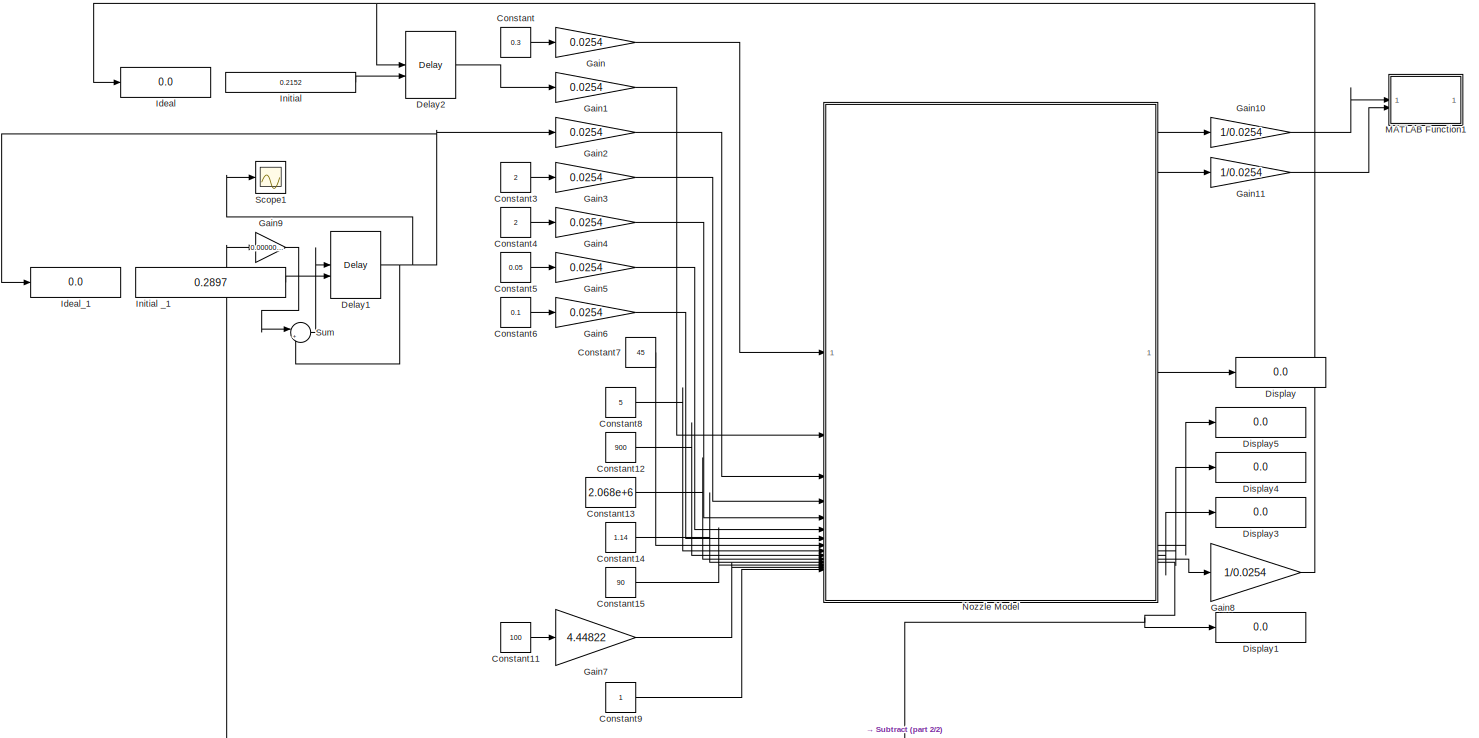
[diagram: root canvas - part 1/2, most of the canvas]
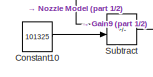
[diagram: root canvas - part 2/2, bottom center region]
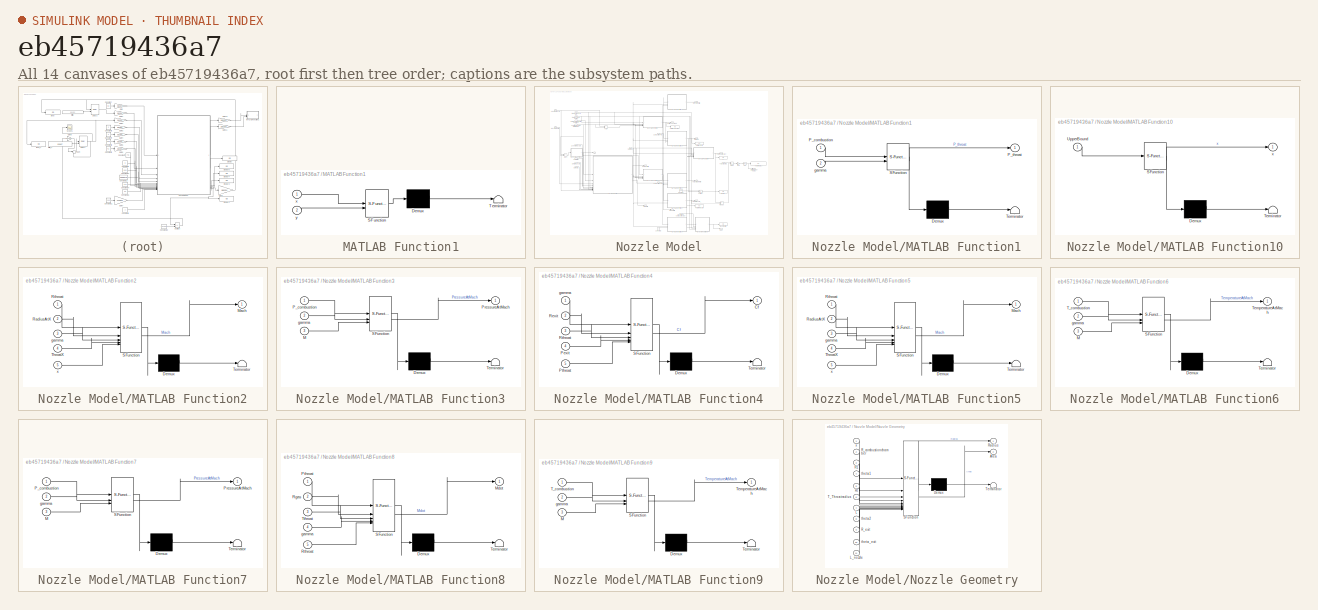
[diagram: thumbnail index - all 14 canvases of the model, root first then tree order]
MODEL slx_eb45719436a7
KIND model
CONFIG AbsTol = auto
CONFIG EnableMultiTasking = off
CONFIG FixedStep = 0.001
CONFIG MaxStep = auto
CONFIG MinStep = auto
CONFIG RelTol = 1e-3
CONFIG SampleTimeConstraint = Unconstrained
CONFIG SolverName = VariableStepAuto
CONFIG StartTime = 0.0
CONFIG StopTime = 10
BLOCK [Constant] Constant
  Value = 0.3
BLOCK [Constant] Constant10
  Value = 101325
BLOCK [Constant] Constant11
  Value = 100
BLOCK [Constant] Constant12
  Value = 900
BLOCK [Constant] Constant13
  Value = 2.068e+6
BLOCK [Constant] Constant14
  Value = 1.14
BLOCK [Constant] Constant15
  Value = 90
BLOCK [Constant] Constant3
  Value = 2
BLOCK [Constant] Constant4
  Value = 2
BLOCK [Constant] Constant5
  Value = 0.05
BLOCK [Constant] Constant6
  Value = 0.1
BLOCK [Constant] Constant7
  Value = 45
BLOCK [Constant] Constant8
  Value = 5
BLOCK [Constant] Constant9
BLOCK [Delay] Delay1
  DelayLength = 1
  InitialConditionSource = Input port
  InputPortMap = u0,p4
BLOCK [Delay] Delay2
  DelayLength = 1
  InitialConditionSource = Input port
  InputPortMap = u0,p4
BLOCK [Display] Display
  Decimation = 1
BLOCK [Display] Display1
  Decimation = 1
BLOCK [Display] Display3
  Decimation = 1
BLOCK [Display] Display4
  Decimation = 1
BLOCK [Display] Display5
  Decimation = 1
BLOCK [Gain] Gain
  Gain = 0.0254
BLOCK [Gain] Gain1
  Gain = 0.0254
BLOCK [Gain] Gain10
  Gain = 1/0.0254
BLOCK [Gain] Gain11
  Gain = 1/0.0254
BLOCK [Gain] Gain2
  Gain = 0.0254
BLOCK [Gain] Gain3
  Gain = 0.0254
BLOCK [Gain] Gain4
  Gain = 0.0254
BLOCK [Gain] Gain5
  Gain = 0.0254
BLOCK [Gain] Gain6
  Gain = 0.0254
BLOCK [Gain] Gain7
  Gain = 4.44822
BLOCK [Gain] Gain8
  Gain = 1/0.0254
BLOCK [Gain] Gain9
  Gain = 0.0000001
BLOCK [Display] Ideal
  Decimation = 1
BLOCK [Display] Ideal_1
  Decimation = 1
BLOCK [Constant] Initial
  Value = 0.2152
BLOCK [Constant] Initial _1
  Value = 0.2897
BLOCK [SubSystem] MATLAB Function1
  ErrorFcn = Stateflow.Translate.translate
  PermitHierarchicalResolution = ExplicitOnly
  SFBlockType = MATLAB Function
  TreatAsAtomicUnit = on
BLOCK [Demux] MATLAB Function1/ Demux 
  Outputs = 1
BLOCK [S-Function] MATLAB Function1/ SFunction 
  EnableBusSupport = on
  FunctionName = sf_sfun
  PortCounts = [2 1]
  SFcnIsStateOwnerBlock = off
  SFunctionDeploymentMode = off
  Tag = Stateflow S-Function 13
BLOCK [Terminator] MATLAB Function1/ Terminator 
BLOCK [Inport] MATLAB Function1/x
BLOCK [Inport] MATLAB Function1/y
  Port = 2
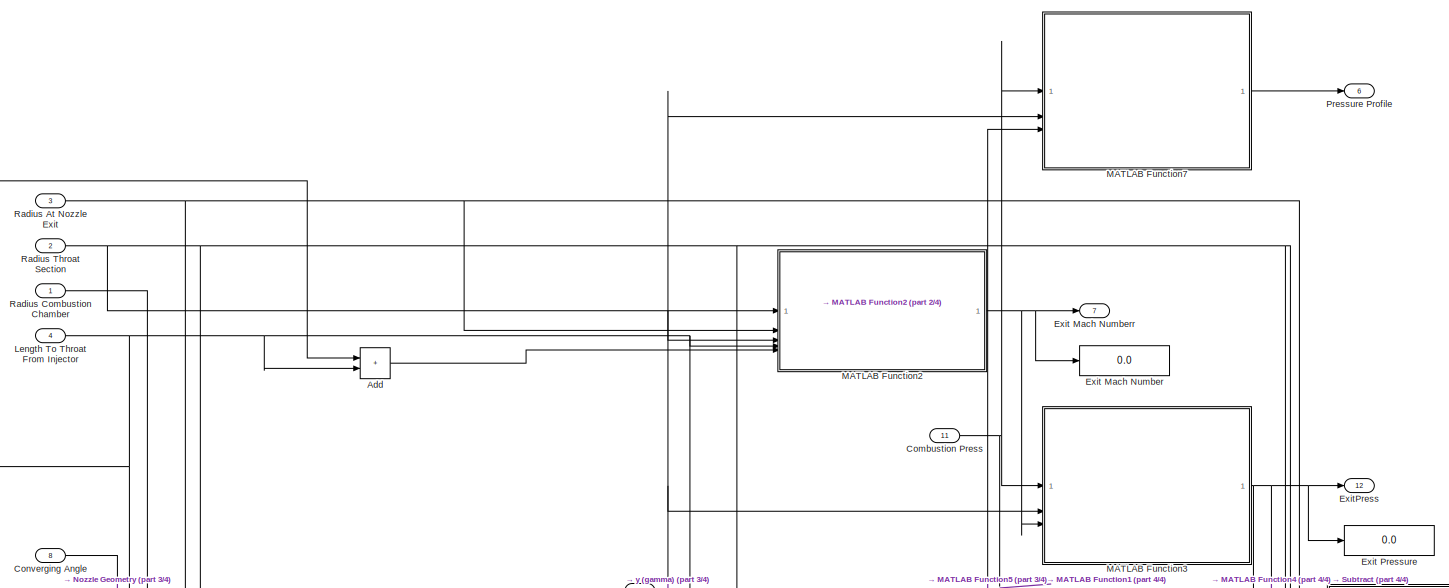
[diagram: Nozzle Model - part 1/4, top center region]
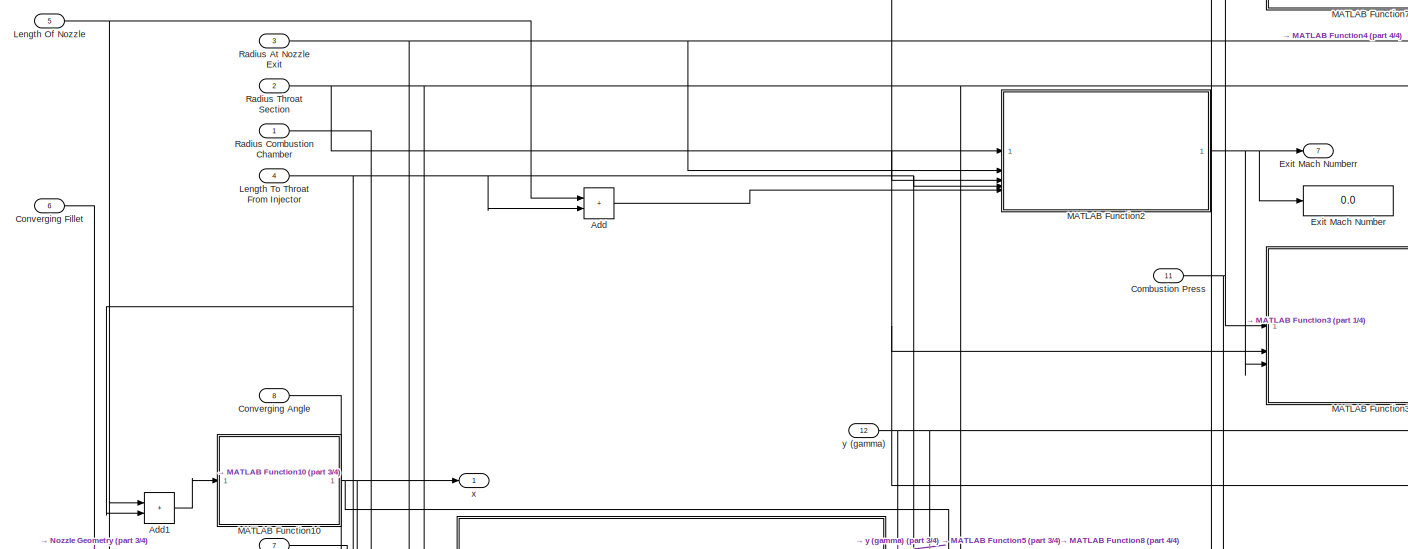
[diagram: Nozzle Model - part 2/4, top left region]
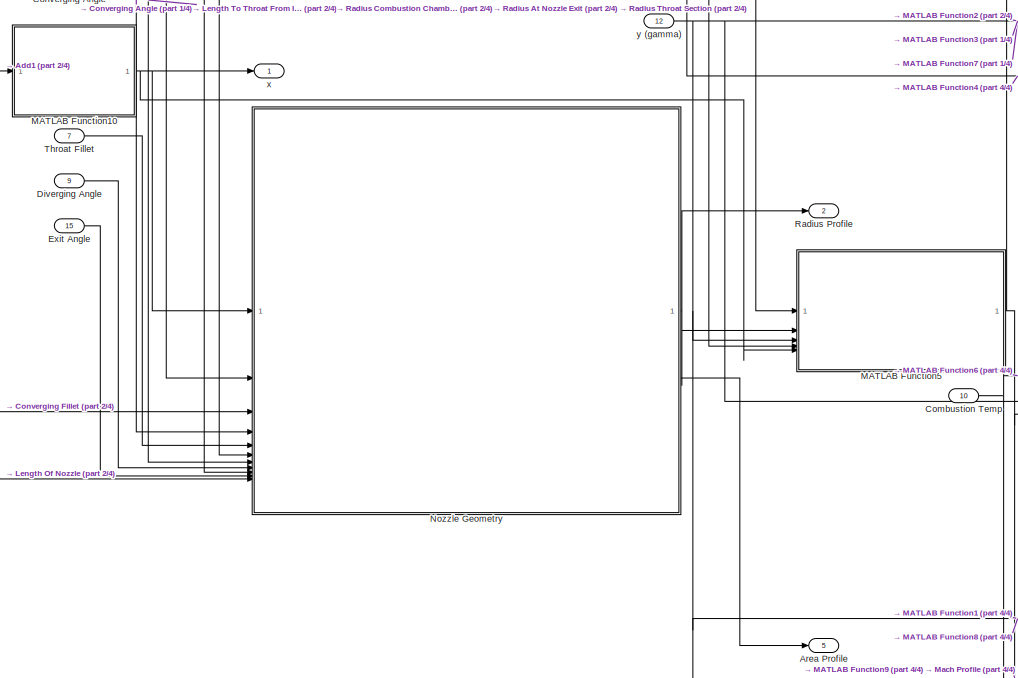
[diagram: Nozzle Model - part 3/4, middle left region]
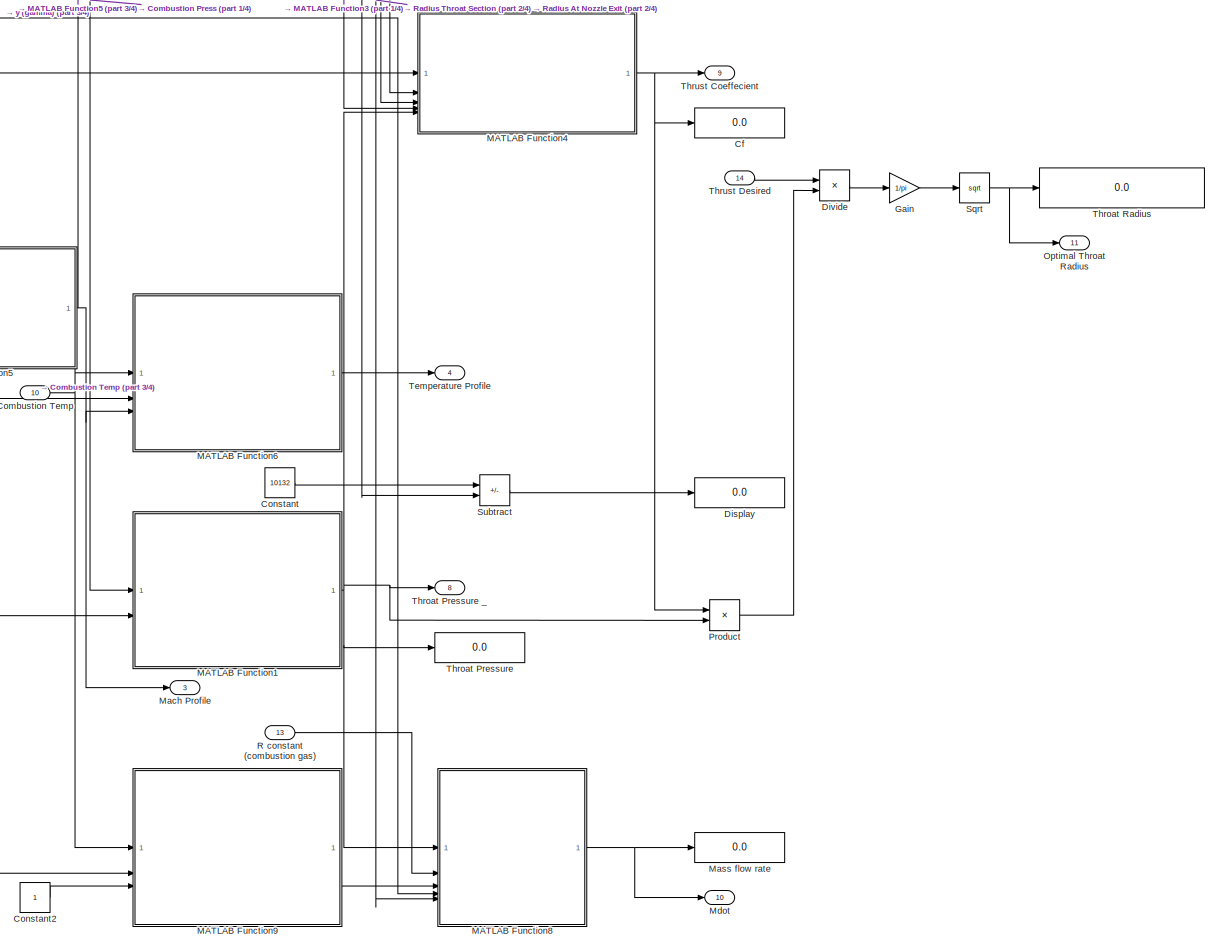
[diagram: Nozzle Model - part 4/4, bottom right region]
BLOCK [SubSystem] Nozzle Model
BLOCK [Sum] Nozzle Model/Add
  IconShape = rectangular
BLOCK [Sum] Nozzle Model/Add1
  IconShape = rectangular
BLOCK [Outport] Nozzle Model/Area Profile
  Port = 5
BLOCK [Display] Nozzle Model/Cf
  Decimation = 1
BLOCK [Inport] Nozzle Model/Combustion Press
  Port = 11
BLOCK [Inport] Nozzle Model/Combustion Temp
  Port = 10
BLOCK [Constant] Nozzle Model/Constant
  Value = 10132
BLOCK [Constant] Nozzle Model/Constant2
BLOCK [Inport] Nozzle Model/Converging Angle
  Port = 8
BLOCK [Inport] Nozzle Model/Converging Fillet
  Port = 6
BLOCK [Display] Nozzle Model/Display
  Decimation = 1
BLOCK [Inport] Nozzle Model/Diverging Angle
  Port = 9
BLOCK [Product] Nozzle Model/Divide
  Inputs = */
BLOCK [Inport] Nozzle Model/Exit Angle
  Port = 15
BLOCK [Display] Nozzle Model/Exit Mach Number
  Decimation = 1
BLOCK [Outport] Nozzle Model/Exit Mach Numberr
  Port = 7
BLOCK [Display] Nozzle Model/Exit Pressure
  Decimation = 1
BLOCK [Outport] Nozzle Model/ExitPress
  Port = 12
BLOCK [Gain] Nozzle Model/Gain
  Gain = 1/pi
BLOCK [Inport] Nozzle Model/Length Of Nozzle
  Port = 5
BLOCK [Inport] Nozzle Model/Length To Throat From Injector
  Port = 4
BLOCK [SubSystem] Nozzle Model/MATLAB Function1
  ErrorFcn = Stateflow.Translate.translate
  PermitHierarchicalResolution = ExplicitOnly
  SFBlockType = MATLAB Function
  TreatAsAtomicUnit = on
BLOCK [Demux] Nozzle Model/MATLAB Function1/ Demux 
  Outputs = 1
BLOCK [S-Function] Nozzle Model/MATLAB Function1/ SFunction 
  EnableBusSupport = on
  FunctionName = sf_sfun
  PortCounts = [2 2]
  SFcnIsStateOwnerBlock = off
  SFunctionDeploymentMode = off
  Tag = Stateflow S-Function 3
BLOCK [Terminator] Nozzle Model/MATLAB Function1/ Terminator 
BLOCK [Inport] Nozzle Model/MATLAB Function1/P_combustion
BLOCK [Outport] Nozzle Model/MATLAB Function1/P_throat
BLOCK [Inport] Nozzle Model/MATLAB Function1/gamma
  Port = 2
BLOCK [SubSystem] Nozzle Model/MATLAB Function10
  ErrorFcn = Stateflow.Translate.translate
  PermitHierarchicalResolution = ExplicitOnly
  SFBlockType = MATLAB Function
  TreatAsAtomicUnit = on
BLOCK [Demux] Nozzle Model/MATLAB Function10/ Demux 
  Outputs = 1
BLOCK [S-Function] Nozzle Model/MATLAB Function10/ SFunction 
  EnableBusSupport = on
  FunctionName = sf_sfun
  PortCounts = [1 2]
  SFcnIsStateOwnerBlock = off
  SFunctionDeploymentMode = off
  Tag = Stateflow S-Function 12
BLOCK [Terminator] Nozzle Model/MATLAB Function10/ Terminator 
BLOCK [Inport] Nozzle Model/MATLAB Function10/UpperBound
BLOCK [Outport] Nozzle Model/MATLAB Function10/x
BLOCK [SubSystem] Nozzle Model/MATLAB Function2
  ErrorFcn = Stateflow.Translate.translate
  PermitHierarchicalResolution = ExplicitOnly
  SFBlockType = MATLAB Function
  TreatAsAtomicUnit = on
BLOCK [Demux] Nozzle Model/MATLAB Function2/ Demux 
  Outputs = 1
BLOCK [S-Function] Nozzle Model/MATLAB Function2/ SFunction 
  EnableBusSupport = on
  FunctionName = sf_sfun
  PortCounts = [5 2]
  SFcnIsStateOwnerBlock = off
  SFunctionDeploymentMode = off
  Tag = Stateflow S-Function 4
BLOCK [Terminator] Nozzle Model/MATLAB Function2/ Terminator 
BLOCK [Outport] Nozzle Model/MATLAB Function2/Mach
BLOCK [Inport] Nozzle Model/MATLAB Function2/RadiusAtX
  Port = 2
BLOCK [Inport] Nozzle Model/MATLAB Function2/Rthroat
BLOCK [Inport] Nozzle Model/MATLAB Function2/ThroatX
  Port = 4
BLOCK [Inport] Nozzle Model/MATLAB Function2/gamma
  Port = 3
BLOCK [Inport] Nozzle Model/MATLAB Function2/x
  Port = 5
BLOCK [SubSystem] Nozzle Model/MATLAB Function3
  ErrorFcn = Stateflow.Translate.translate
  PermitHierarchicalResolution = ExplicitOnly
  SFBlockType = MATLAB Function
  TreatAsAtomicUnit = on
BLOCK [Demux] Nozzle Model/MATLAB Function3/ Demux 
  Outputs = 1
BLOCK [S-Function] Nozzle Model/MATLAB Function3/ SFunction 
  EnableBusSupport = on
  FunctionName = sf_sfun
  PortCounts = [3 2]
  SFcnIsStateOwnerBlock = off
  SFunctionDeploymentMode = off
  Tag = Stateflow S-Function 5
BLOCK [Terminator] Nozzle Model/MATLAB Function3/ Terminator 
BLOCK [Inport] Nozzle Model/MATLAB Function3/M
  Port = 3
BLOCK [Inport] Nozzle Model/MATLAB Function3/P_combustion
BLOCK [Outport] Nozzle Model/MATLAB Function3/PressureAtMach
BLOCK [Inport] Nozzle Model/MATLAB Function3/gamma
  Port = 2
BLOCK [SubSystem] Nozzle Model/MATLAB Function4
  ErrorFcn = Stateflow.Translate.translate
  PermitHierarchicalResolution = ExplicitOnly
  SFBlockType = MATLAB Function
  TreatAsAtomicUnit = on
BLOCK [Demux] Nozzle Model/MATLAB Function4/ Demux 
  Outputs = 1
BLOCK [S-Function] Nozzle Model/MATLAB Function4/ SFunction 
  EnableBusSupport = on
  FunctionName = sf_sfun
  PortCounts = [5 2]
  SFcnIsStateOwnerBlock = off
  SFunctionDeploymentMode = off
  Tag = Stateflow S-Function 6
BLOCK [Terminator] Nozzle Model/MATLAB Function4/ Terminator 
BLOCK [Outport] Nozzle Model/MATLAB Function4/Cf
BLOCK [Inport] Nozzle Model/MATLAB Function4/Pexit
  Port = 4
BLOCK [Inport] Nozzle Model/MATLAB Function4/Pthroat
  Port = 5
BLOCK [Inport] Nozzle Model/MATLAB Function4/Rexit
  Port = 2
BLOCK [Inport] Nozzle Model/MATLAB Function4/Rthroat
  Port = 3
BLOCK [Inport] Nozzle Model/MATLAB Function4/gamma
BLOCK [SubSystem] Nozzle Model/MATLAB Function5
  ErrorFcn = Stateflow.Translate.translate
  PermitHierarchicalResolution = ExplicitOnly
  SFBlockType = MATLAB Function
  TreatAsAtomicUnit = on
BLOCK [Demux] Nozzle Model/MATLAB Function5/ Demux 
  Outputs = 1
BLOCK [S-Function] Nozzle Model/MATLAB Function5/ SFunction 
  EnableBusSupport = on
  FunctionName = sf_sfun
  PortCounts = [5 2]
  SFcnIsStateOwnerBlock = off
  SFunctionDeploymentMode = off
  Tag = Stateflow S-Function 7
BLOCK [Terminator] Nozzle Model/MATLAB Function5/ Terminator 
BLOCK [Outport] Nozzle Model/MATLAB Function5/Mach
BLOCK [Inport] Nozzle Model/MATLAB Function5/RadiusAtX
  Port = 2
BLOCK [Inport] Nozzle Model/MATLAB Function5/Rthroat
BLOCK [Inport] Nozzle Model/MATLAB Function5/ThroatX
  Port = 4
BLOCK [Inport] Nozzle Model/MATLAB Function5/gamma
  Port = 3
BLOCK [Inport] Nozzle Model/MATLAB Function5/x
  Port = 5
BLOCK [SubSystem] Nozzle Model/MATLAB Function6
  ErrorFcn = Stateflow.Translate.translate
  PermitHierarchicalResolution = ExplicitOnly
  SFBlockType = MATLAB Function
  TreatAsAtomicUnit = on
BLOCK [Demux] Nozzle Model/MATLAB Function6/ Demux 
  Outputs = 1
BLOCK [S-Function] Nozzle Model/MATLAB Function6/ SFunction 
  EnableBusSupport = on
  FunctionName = sf_sfun
  PortCounts = [3 2]
  SFcnIsStateOwnerBlock = off
  SFunctionDeploymentMode = off
  Tag = Stateflow S-Function 8
BLOCK [Terminator] Nozzle Model/MATLAB Function6/ Terminator 
BLOCK [Inport] Nozzle Model/MATLAB Function6/M
  Port = 3
BLOCK [Inport] Nozzle Model/MATLAB Function6/T_combustion
BLOCK [Outport] Nozzle Model/MATLAB Function6/TemperatureAtMach
BLOCK [Inport] Nozzle Model/MATLAB Function6/gamma
  Port = 2
BLOCK [SubSystem] Nozzle Model/MATLAB Function7
  ErrorFcn = Stateflow.Translate.translate
  PermitHierarchicalResolution = ExplicitOnly
  SFBlockType = MATLAB Function
  TreatAsAtomicUnit = on
BLOCK [Demux] Nozzle Model/MATLAB Function7/ Demux 
  Outputs = 1
BLOCK [S-Function] Nozzle Model/MATLAB Function7/ SFunction 
  EnableBusSupport = on
  FunctionName = sf_sfun
  PortCounts = [3 2]
  SFcnIsStateOwnerBlock = off
  SFunctionDeploymentMode = off
  Tag = Stateflow S-Function 9
BLOCK [Terminator] Nozzle Model/MATLAB Function7/ Terminator 
BLOCK [Inport] Nozzle Model/MATLAB Function7/M
  Port = 3
BLOCK [Inport] Nozzle Model/MATLAB Function7/P_combustion
BLOCK [Outport] Nozzle Model/MATLAB Function7/PressureAtMach
BLOCK [Inport] Nozzle Model/MATLAB Function7/gamma
  Port = 2
BLOCK [SubSystem] Nozzle Model/MATLAB Function8
  ErrorFcn = Stateflow.Translate.translate
  PermitHierarchicalResolution = ExplicitOnly
  SFBlockType = MATLAB Function
  TreatAsAtomicUnit = on
BLOCK [Demux] Nozzle Model/MATLAB Function8/ Demux 
  Outputs = 1
BLOCK [S-Function] Nozzle Model/MATLAB Function8/ SFunction 
  EnableBusSupport = on
  FunctionName = sf_sfun
  PortCounts = [5 2]
  SFcnIsStateOwnerBlock = off
  SFunctionDeploymentMode = off
  Tag = Stateflow S-Function 10
BLOCK [Terminator] Nozzle Model/MATLAB Function8/ Terminator 
BLOCK [Outport] Nozzle Model/MATLAB Function8/Mdot
BLOCK [Inport] Nozzle Model/MATLAB Function8/Pthroat
BLOCK [Inport] Nozzle Model/MATLAB Function8/Rgas
  Port = 2
BLOCK [Inport] Nozzle Model/MATLAB Function8/Rthroat
  Port = 5
BLOCK [Inport] Nozzle Model/MATLAB Function8/Tthroat
  Port = 3
BLOCK [Inport] Nozzle Model/MATLAB Function8/gamma
  Port = 4
BLOCK [SubSystem] Nozzle Model/MATLAB Function9
  ErrorFcn = Stateflow.Translate.translate
  PermitHierarchicalResolution = ExplicitOnly
  SFBlockType = MATLAB Function
  TreatAsAtomicUnit = on
BLOCK [Demux] Nozzle Model/MATLAB Function9/ Demux 
  Outputs = 1
BLOCK [S-Function] Nozzle Model/MATLAB Function9/ SFunction 
  EnableBusSupport = on
  FunctionName = sf_sfun
  PortCounts = [3 2]
  SFcnIsStateOwnerBlock = off
  SFunctionDeploymentMode = off
  Tag = Stateflow S-Function 11
BLOCK [Terminator] Nozzle Model/MATLAB Function9/ Terminator 
BLOCK [Inport] Nozzle Model/MATLAB Function9/M
  Port = 3
BLOCK [Inport] Nozzle Model/MATLAB Function9/T_combustion
BLOCK [Outport] Nozzle Model/MATLAB Function9/TemperatureAtMach
BLOCK [Inport] Nozzle Model/MATLAB Function9/gamma
  Port = 2
BLOCK [Outport] Nozzle Model/Mach Profile
  Port = 3
BLOCK [Display] Nozzle Model/Mass flow rate
  Decimation = 1
BLOCK [Outport] Nozzle Model/Mdot
  Port = 10
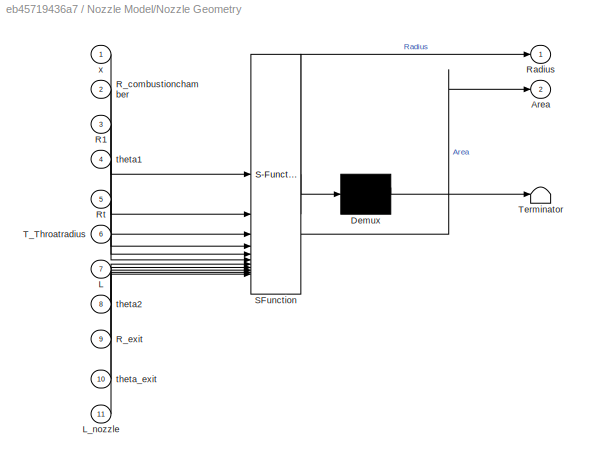
BLOCK [SubSystem] Nozzle Model/Nozzle Geometry
  ErrorFcn = Stateflow.Translate.translate
  PermitHierarchicalResolution = ExplicitOnly
  SFBlockType = MATLAB Function
  TreatAsAtomicUnit = on
BLOCK [Demux] Nozzle Model/Nozzle Geometry/ Demux 
  Outputs = 1
BLOCK [S-Function] Nozzle Model/Nozzle Geometry/ SFunction 
  EnableBusSupport = on
  FunctionName = sf_sfun
  PortCounts = [11 3]
  SFcnIsStateOwnerBlock = off
  SFunctionDeploymentMode = off
  Tag = Stateflow S-Function 1
BLOCK [Terminator] Nozzle Model/Nozzle Geometry/ Terminator 
BLOCK [Outport] Nozzle Model/Nozzle Geometry/Area
  Port = 2
BLOCK [Inport] Nozzle Model/Nozzle Geometry/L
  Port = 7
BLOCK [Inport] Nozzle Model/Nozzle Geometry/L_nozzle
  Port = 11
BLOCK [Inport] Nozzle Model/Nozzle Geometry/R1
  Port = 3
BLOCK [Inport] Nozzle Model/Nozzle Geometry/R_combustionchamber
  Port = 2
BLOCK [Inport] Nozzle Model/Nozzle Geometry/R_exit
  Port = 9
BLOCK [Outport] Nozzle Model/Nozzle Geometry/Radius
BLOCK [Inport] Nozzle Model/Nozzle Geometry/Rt
  Port = 5
BLOCK [Inport] Nozzle Model/Nozzle Geometry/T_Throatradius
  Port = 6
BLOCK [Inport] Nozzle Model/Nozzle Geometry/theta1
  Port = 4
BLOCK [Inport] Nozzle Model/Nozzle Geometry/theta2
  Port = 8
BLOCK [Inport] Nozzle Model/Nozzle Geometry/theta_exit
  Port = 10
BLOCK [Inport] Nozzle Model/Nozzle Geometry/x
BLOCK [Outport] Nozzle Model/Optimal Throat Radius
  Port = 11
BLOCK [Outport] Nozzle Model/Pressure Profile
  Port = 6
BLOCK [Product] Nozzle Model/Product
BLOCK [Inport] Nozzle Model/R constant (combustion gas)
  Port = 13
BLOCK [Inport] Nozzle Model/Radius At Nozzle Exit
  Port = 3
BLOCK [Inport] Nozzle Model/Radius Combustion Chamber
BLOCK [Outport] Nozzle Model/Radius Profile
  Port = 2
BLOCK [Inport] Nozzle Model/Radius Throat Section
  Port = 2
BLOCK [Sqrt] Nozzle Model/Sqrt
BLOCK [Sum] Nozzle Model/Subtract
  IconShape = rectangular
  Inputs = +-
BLOCK [Outport] Nozzle Model/Temperature Profile
  Port = 4
BLOCK [Inport] Nozzle Model/Throat Fillet
  Port = 7
BLOCK [Display] Nozzle Model/Throat Pressure
  Decimation = 1
BLOCK [Outport] Nozzle Model/Throat Pressure _
  Port = 8
BLOCK [Display] Nozzle Model/Throat Radius
  Decimation = 1
BLOCK [Outport] Nozzle Model/Thrust Coeffecient
  Port = 9
BLOCK [Inport] Nozzle Model/Thrust Desired
  Port = 14
BLOCK [Outport] Nozzle Model/x
BLOCK [Inport] Nozzle Model/y (gamma)
  Port = 12
BLOCK [Scope] Scope1
  Floating = off
  NumInputPorts = 1
  ScopeSpecificationString = Simulink.scopes.TimeScopeBlockCfg('CurrentConfiguration', extmgr.ConfigurationSet(extmgr.Configuration('Core','General UI',true),extmgr.Configuration('Core','Source UI',true),extmgr.Configuration('Sources','WiredSimulink',true,'DataLoggingVariableName','ScopeData1'),extmgr.Configuration('Visuals','Time Domain',true,'SerializedDisplays',{struct('MinYLimReal','0.21727','MaxYLimReal','0.2266','YLabel...<+1448ch>
BLOCK [Sum] Subtract
  IconShape = rectangular
  Inputs = +-
BLOCK [Sum] Sum
  Inputs = |++
LINE Constant10:1 -> Subtract:2
LINE Constant11:1 -> Gain7:1
LINE Constant12:1 -> Nozzle Model:10
LINE Constant13:1 -> Nozzle Model:11
LINE Constant14:1 -> Nozzle Model:12
LINE Constant15:1 -> Nozzle Model:13
LINE Constant3:1 -> Gain3:1
LINE Constant4:1 -> Gain4:1
LINE Constant5:1 -> Gain5:1
LINE Constant6:1 -> Gain6:1
LINE Constant7:1 -> Nozzle Model:8
LINE Constant8:1 -> Nozzle Model:9
LINE Constant9:1 -> Nozzle Model:15
LINE Constant:1 -> Gain:1
NET Delay1:1 -> Gain2:1, Ideal_1:1, Scope1:1, Sum:2
LINE Delay2:1 -> Gain1:1
LINE Gain10:1 -> MATLAB Function1:1
LINE Gain11:1 -> MATLAB Function1:2
LINE Gain1:1 -> Nozzle Model:2
LINE Gain2:1 -> Nozzle Model:3
LINE Gain3:1 -> Nozzle Model:4
LINE Gain4:1 -> Nozzle Model:5
LINE Gain5:1 -> Nozzle Model:6
LINE Gain6:1 -> Nozzle Model:7
LINE Gain7:1 -> Nozzle Model:14
NET Gain8:1 -> Delay2:1, Ideal:1
LINE Gain9:1 -> Sum:1
LINE Gain:1 -> Nozzle Model:1
LINE Initial _1:1 -> Delay1:2
LINE Initial:1 -> Delay2:2
LINE Nozzle Model/Add1:1 -> Nozzle Model/MATLAB Function10:1
LINE Nozzle Model/Add:1 -> Nozzle Model/MATLAB Function2:5
NET Nozzle Model/Combustion Press:1 -> Nozzle Model/MATLAB Function1:1, Nozzle Model/MATLAB Function3:1, Nozzle Model/MATLAB Function7:1
NET Nozzle Model/Combustion Temp:1 -> Nozzle Model/MATLAB Function6:1, Nozzle Model/MATLAB Function9:1
LINE Nozzle Model/Constant2:1 -> Nozzle Model/MATLAB Function9:3
LINE Nozzle Model/Constant:1 -> Nozzle Model/Subtract:1
LINE Nozzle Model/Converging Angle:1 -> Nozzle Model/Nozzle Geometry:4
LINE Nozzle Model/Converging Fillet:1 -> Nozzle Model/Nozzle Geometry:3
LINE Nozzle Model/Diverging Angle:1 -> Nozzle Model/Nozzle Geometry:8
LINE Nozzle Model/Divide:1 -> Nozzle Model/Gain:1
LINE Nozzle Model/Exit Angle:1 -> Nozzle Model/Nozzle Geometry:10
LINE Nozzle Model/Gain:1 -> Nozzle Model/Sqrt:1
NET Nozzle Model/Length Of Nozzle:1 -> Nozzle Model/Add1:1, Nozzle Model/Add:1, Nozzle Model/Nozzle Geometry:11
NET Nozzle Model/Length To Throat From Injector:1 -> Nozzle Model/Add1:2, Nozzle Model/Add:2, Nozzle Model/MATLAB Function2:4, Nozzle Model/MATLAB Function5:4, Nozzle Model/Nozzle Geometry:7
NET Nozzle Model/MATLAB Function10:1 -> Nozzle Model/MATLAB Function5:5, Nozzle Model/Nozzle Geometry:1, Nozzle Model/x:1
NET Nozzle Model/MATLAB Function1:1 -> Nozzle Model/MATLAB Function4:5, Nozzle Model/MATLAB Function8:1, Nozzle Model/Product:2, Nozzle Model/Throat Pressure _:1, Nozzle Model/Throat Pressure:1
NET Nozzle Model/MATLAB Function2:1 -> Nozzle Model/Exit Mach Number:1, Nozzle Model/Exit Mach Numberr:1, Nozzle Model/MATLAB Function3:3
NET Nozzle Model/MATLAB Function3:1 -> Nozzle Model/Exit Pressure:1, Nozzle Model/ExitPress:1, Nozzle Model/MATLAB Function4:4, Nozzle Model/Subtract:2
NET Nozzle Model/MATLAB Function4:1 -> Nozzle Model/Cf:1, Nozzle Model/Product:1, Nozzle Model/Thrust Coeffecient:1
NET Nozzle Model/MATLAB Function5:1 -> Nozzle Model/MATLAB Function6:3, Nozzle Model/MATLAB Function7:3, Nozzle Model/Mach Profile:1
LINE Nozzle Model/MATLAB Function6:1 -> Nozzle Model/Temperature Profile:1
LINE Nozzle Model/MATLAB Function7:1 -> Nozzle Model/Pressure Profile:1
NET Nozzle Model/MATLAB Function8:1 -> Nozzle Model/Mass flow rate:1, Nozzle Model/Mdot:1
LINE Nozzle Model/MATLAB Function9:1 -> Nozzle Model/MATLAB Function8:3
NET Nozzle Model/Nozzle Geometry:1 -> Nozzle Model/MATLAB Function5:2, Nozzle Model/Radius Profile:1
LINE Nozzle Model/Nozzle Geometry:2 -> Nozzle Model/Area Profile:1
LINE Nozzle Model/Product:1 -> Nozzle Model/Divide:2
LINE Nozzle Model/R constant (combustion gas):1 -> Nozzle Model/MATLAB Function8:2
NET Nozzle Model/Radius At Nozzle Exit:1 -> Nozzle Model/MATLAB Function2:2, Nozzle Model/MATLAB Function4:2, Nozzle Model/Nozzle Geometry:9
LINE Nozzle Model/Radius Combustion Chamber:1 -> Nozzle Model/Nozzle Geometry:2
NET Nozzle Model/Radius Throat Section:1 -> Nozzle Model/MATLAB Function2:1, Nozzle Model/MATLAB Function4:3, Nozzle Model/MATLAB Function5:1, Nozzle Model/MATLAB Function8:5, Nozzle Model/Nozzle Geometry:6
NET Nozzle Model/Sqrt:1 -> Nozzle Model/Optimal Throat Radius:1, Nozzle Model/Throat Radius:1
LINE Nozzle Model/Subtract:1 -> Nozzle Model/Display:1
LINE Nozzle Model/Throat Fillet:1 -> Nozzle Model/Nozzle Geometry:5
LINE Nozzle Model/Thrust Desired:1 -> Nozzle Model/Divide:1
NET Nozzle Model/y (gamma):1 -> Nozzle Model/MATLAB Function1:2, Nozzle Model/MATLAB Function2:3, Nozzle Model/MATLAB Function3:2, Nozzle Model/MATLAB Function4:1, Nozzle Model/MATLAB Function5:3, Nozzle Model/MATLAB Function6:2, Nozzle Model/MATLAB Function7:2, Nozzle Model/MATLAB Function8:4, Nozzle Model/MATLAB Function9:2
LINE Nozzle Model:1 -> Gain10:1
LINE Nozzle Model:10 -> Display3:1
LINE Nozzle Model:11 -> Gain8:1
NET Nozzle Model:12 -> Display1:1, Subtract:1
LINE Nozzle Model:2 -> Gain11:1
LINE Nozzle Model:7 -> Display:1
LINE Nozzle Model:8 -> Display5:1
LINE Nozzle Model:9 -> Display4:1
LINE Subtract:1 -> Gain9:1
LINE Sum:1 -> Delay1:1
note: NET lines group one-source signal fan-out (src -> all destinations, sorted); 1:1 wires keep LINE
CHART Nozzle Model/MATLAB Function8 states=1 transitions=1
  STATE_LABEL 'eML_blk_kernel()'
  STATE_LABEL 'SCRIPT:\nfunction Mdot = MassFlow(Pthroat, Rgas, Tthroat, gamma, Rthroat)\n\nMdot = Pthroat * (Rgas * Tthroat)^-1 * sqrt(gamma * Rgas * Tthroat) * pi * Rthroat^2;\n'
CHART Nozzle Model/MATLAB Function9 states=1 transitions=1
  STATE_LABEL 'eML_blk_kernel()'
  STATE_LABEL 'SCRIPT:\nfunction TemperatureAtMach = IsentropicTemperature(T_combustion, gamma, M)\n\n\nTemperatureAtMach = T_combustion * (1 + 0.5*(gamma-1)*M^2)^(-1);\n'
CHART Nozzle Model/MATLAB Function10 states=1 transitions=1
  STATE_LABEL 'eML_blk_kernel()'
  STATE_LABEL 'SCRIPT:\nfunction x = Span(UpperBound)\n\nx = linspace(0, UpperBound, 10000);\n'
CHART MATLAB Function1 states=1 transitions=1
  STATE_LABEL 'eML_blk_kernel()'
  STATE_LABEL "SCRIPT:\nfunction fcn(x, y)\nhold on\nplot(x,y)\naxis('equal')\ngrid on\nend\n"
CHART Nozzle Model/Nozzle Geometry states=1 transitions=1
  STATE_LABEL 'eML_blk_kernel()'
  STATE_LABEL 'SCRIPT:\nfunction [Radius, Area] = combustionChamberProfile(x, R_combustionchamber, R1, theta1, Rt, T_Throatradius, L, theta2, R_exit, theta_exit, L_nozzle)\n    y = zeros(1, length(x));\n    for i=1:length(y)\n    % Calculate the boundaries for each piece of the function\n    boundary1 = -R1 * tan((theta1 * pi / 180) / 2) + (1 / tan(-theta1 * pi / 180)) * (R_combustionchamber + sqrt(Rt^2 - (Rt * sin(t...<+1749ch>'
CHART Nozzle Model/MATLAB Function1 states=1 transitions=1
  STATE_LABEL 'eML_blk_kernel()'
  STATE_LABEL 'SCRIPT:\nfunction P_throat = ComputeThroatPressure(P_combustion, gamma)\n\n\nP_throat = P_combustion*((0.5*gamma + 0.5)^((-gamma)/(gamma-1)));\n'
CHART Nozzle Model/MATLAB Function2 states=1 transitions=1
  STATE_LABEL 'eML_blk_kernel()'
  STATE_LABEL 'SCRIPT:\nfunction Mach = ComputeMach(Rthroat, RadiusAtX, gamma, ThroatX, x)\n\n\n\nif length(x)==1\n    fun = @(M) M^-2 * (2 * (gamma + 1)^-1 * (1 + 0.5*(gamma-1)*M^2))^((gamma + 1)/(gamma-1)) - (RadiusAtX/Rthroat)^2;\n    if x>ThroatX\n        Mach = fzero(fun, 10);\n    elseif x == ThroatX\n        Mach = 1;\n    else\n        Mach = fzero(fun, [0.001 0.9999]);\n    end\nelse\n\n\n    Mach = zeros(length(x));\n  ...<+329ch>'
CHART Nozzle Model/MATLAB Function3 states=1 transitions=1
  STATE_LABEL 'eML_blk_kernel()'
  STATE_LABEL 'SCRIPT:\nfunction PressureAtMach = IsentropicPressure(P_combustion, gamma, M)\n\n\nPressureAtMach = P_combustion .* (1 + 0.5.*(gamma-1).*M.^2).^(-gamma/(gamma-1));\n'
CHART Nozzle Model/MATLAB Function4 states=1 transitions=1
  STATE_LABEL 'eML_blk_kernel()'
  STATE_LABEL 'SCRIPT:\nfunction Cf = ThrustCoeff(gamma, Rexit, Rthroat, Pexit, Pthroat)\n\nCf = sqrt(2 * gamma ^2 * (gamma-1)^-1 * (0.5*(gamma+1))^((gamma+1)/(gamma-1)) * (1-(Pexit/Pthroat)^((gamma-1)/gamma))) + (Rexit/Rthroat)^2 * (Pexit/Pthroat);'
CHART Nozzle Model/MATLAB Function5 states=1 transitions=1
  STATE_LABEL 'eML_blk_kernel()'
  STATE_LABEL 'SCRIPT:\nfunction Mach = ComputeMach(Rthroat, RadiusAtX, gamma, ThroatX, x)\n\n\nMach = zeros(1,length(x));\nfor i=1:length(Mach)\nfun = @(M) M^-2 * (2 * (gamma + 1)^-1 * (1 + 0.5*(gamma-1)*M^2))^((gamma + 1)/(gamma-1)) - (RadiusAtX(i)/Rthroat)^2;\nif x(i)>ThroatX\n    Mach(i) = fzero(fun, 10);\nelseif x(i) == ThroatX\n    Mach(i) = 1;\nelse\n    Mach(i) = fzero(fun, 0.5);\nend\nend\n'
CHART Nozzle Model/MATLAB Function6 states=1 transitions=1
  STATE_LABEL 'eML_blk_kernel()'
  STATE_LABEL 'SCRIPT:\nfunction TemperatureAtMach = IsentropicTemperature(T_combustion, gamma, M)\n\n\nTemperatureAtMach = T_combustion .* (1 + 0.5.*(gamma-1).*M.^2).^(-1);\n'
CHART Nozzle Model/MATLAB Function7 states=1 transitions=1
  STATE_LABEL 'eML_blk_kernel()'
  STATE_LABEL 'SCRIPT:\nfunction PressureAtMach = IsentropicPressure(P_combustion, gamma, M)\n\n\nPressureAtMach = P_combustion .* (1 + 0.5.*(gamma-1).*M.^2).^(-gamma/(gamma-1));\n'
CHART  states=0 transitions=0
CHART  states=0 transitions=0
CHART  states=0 transitions=0
CHART  states=0 transitions=0
CHART  states=0 transitions=0
CHART  states=0 transitions=0
CHART  states=0 transitions=0
CHART  states=0 transitions=0
CHART  states=0 transitions=0
CHART  states=0 transitions=0
CHART  states=0 transitions=0
CHART  states=0 transitions=0
